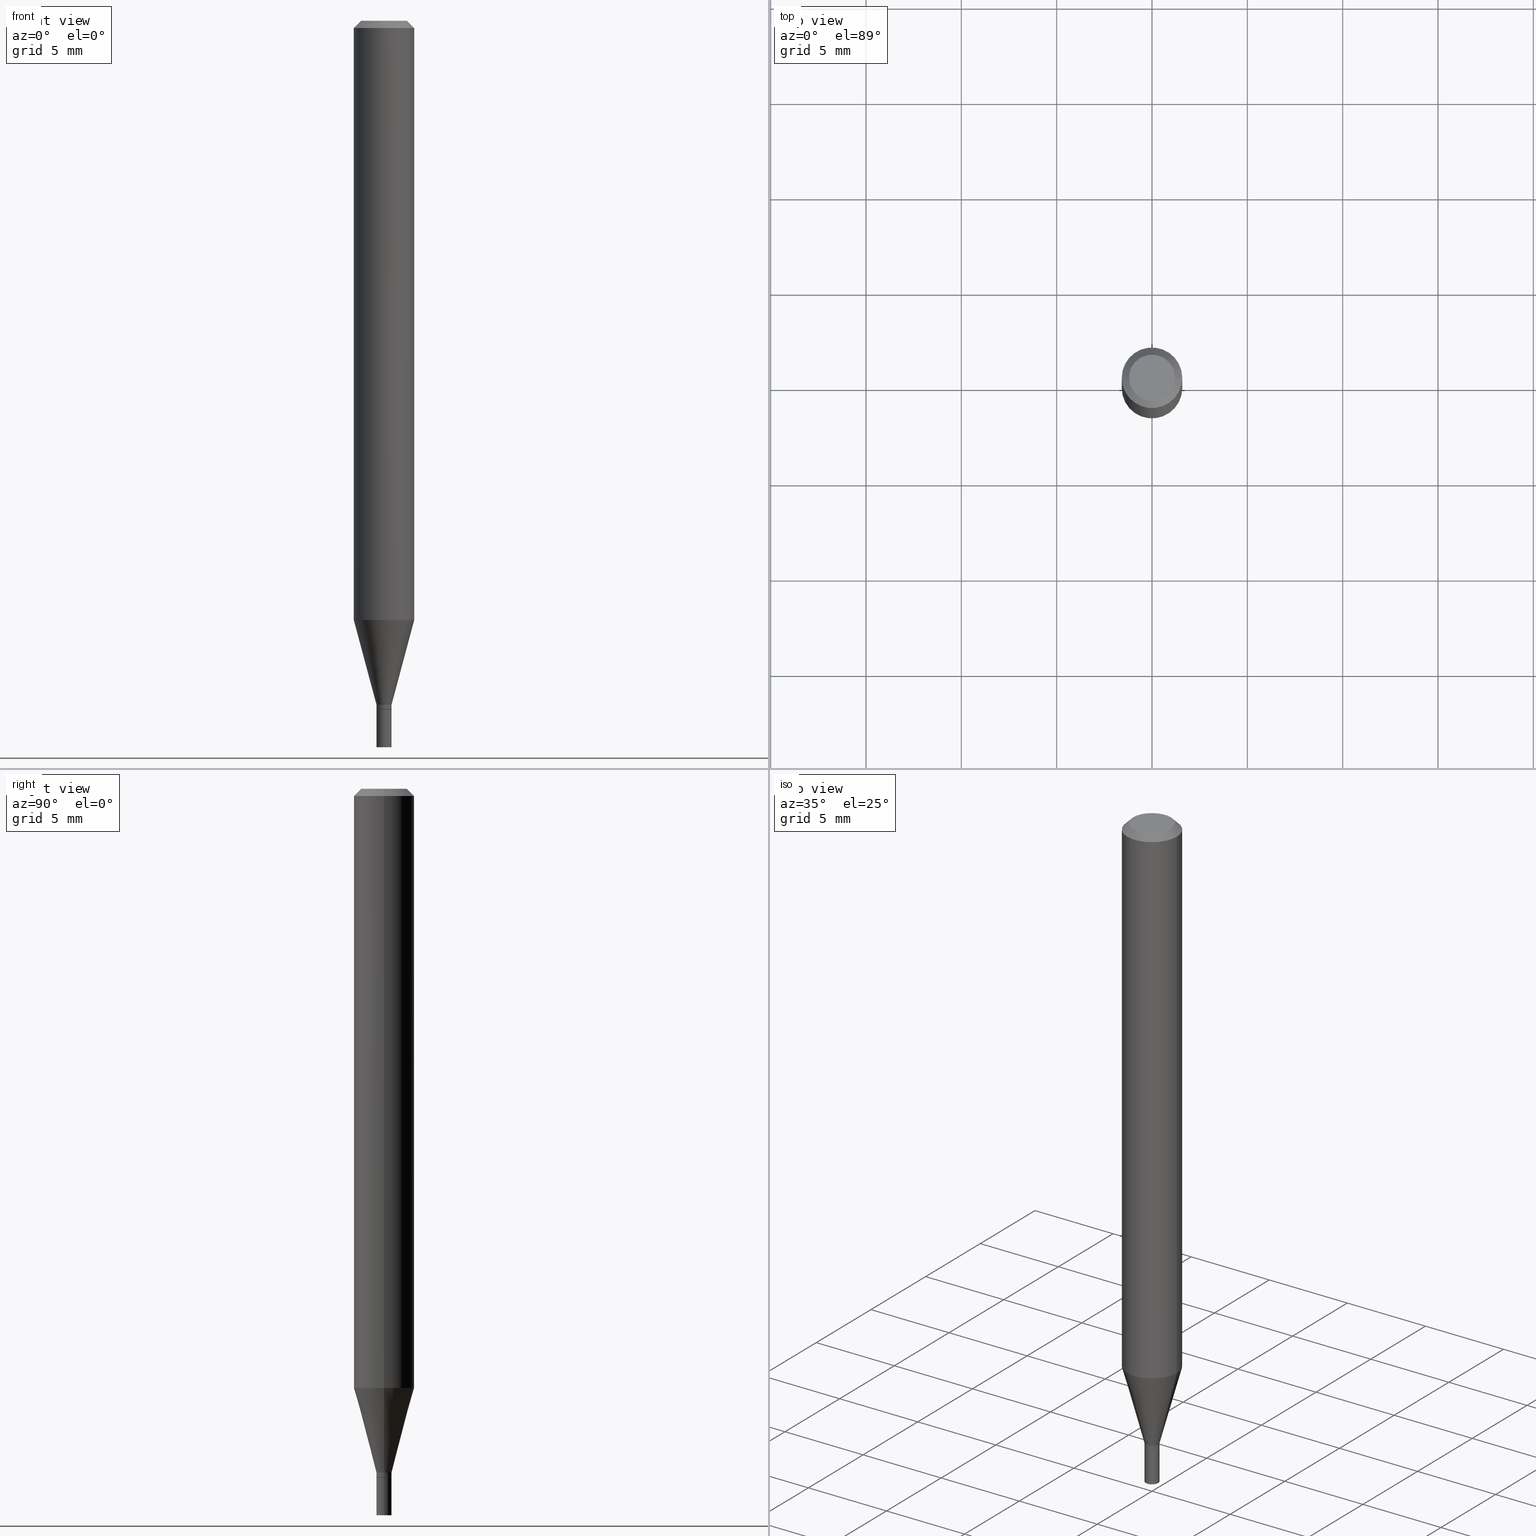
[diagram: canonical four-view strip — front | top / right | iso, engineering-drawing reading convention]
A machine part, canonical four-view strip (front | top / right | iso — engineering-drawing reading convention). The complete STEP part file that produces these views, byte-faithful:
ISO-10303-21;
HEADER;
FILE_DESCRIPTION (( 'STEP AP203' ),
    '1' );
FILE_NAME ('30772.STEP',
    '2024-03-13T16:17:05',
    ( '' ),
    ( '' ),
    'SwSTEP 2.0',
    'SolidWorks 2023',
    '' );
FILE_SCHEMA (( 'CONFIG_CONTROL_DESIGN' ));
ENDSEC;

DATA;
#1 = CARTESIAN_POINT ( 'NONE',  ( -0.01509999999999999884, -4.857594510735178220E-15, -1.421999999999999931 ) ) ;
#2 = EDGE_CURVE ( 'NONE', #197, #410, #57, .T. ) ;
#3 = LOCAL_TIME ( 12, 17, 5.000000000000000000, #382 ) ;
#4 = CARTESIAN_POINT ( 'NONE',  ( 3.453001954333413314E-29, -4.929971650446521716E-15, -1.412000000000000144 ) ) ;
#5 = ORIENTED_EDGE ( 'NONE', *, *, #172, .F. ) ;
#6 = DIRECTION ( 'NONE',  ( -2.445468806185136597E-29, 3.491481338843145583E-15, 1.000000000000000000 ) ) ;
#7 = DIRECTION ( 'NONE',  ( 1.000000000000000000, -6.982962677686252511E-15, 0.000000000000000000 ) ) ;
#8 = ADVANCED_FACE ( 'NONE', ( #419 ), #129, .T. ) ;
#9 = APPLICATION_CONTEXT ( 'configuration controlled 3d designs of mechanical parts and assemblies' ) ;
#10 = ORIENTED_EDGE ( 'NONE', *, *, #422, .T. ) ;
#11 = CARTESIAN_POINT ( 'NONE',  ( -0.01559999999999992816, -4.346942166289046833E-15, -1.412000000000000144 ) ) ;
#12 = AXIS2_PLACEMENT_3D ( 'NONE', #341, #61, #372 ) ;
#13 = EDGE_LOOP ( 'NONE', ( #21, #149, #5, #464 ) ) ;
#14 = DIRECTION ( 'NONE',  ( 1.000000000000000000, -6.982962677686283277E-15, 0.000000000000000000 ) ) ;
#15 = VERTEX_POINT ( 'NONE', #379 ) ;
#16 = VERTEX_POINT ( 'NONE', #240 ) ;
#17 = EDGE_CURVE ( 'NONE', #168, #15, #167, .T. ) ;
#18 = ORIENTED_EDGE ( 'NONE', *, *, #204, .T. ) ;
#19 = AXIS2_PLACEMENT_3D ( 'NONE', #230, #200, #269 ) ;
#20 = DIRECTION ( 'NONE',  ( 1.000000000000000000, -6.982962677686262766E-15, 0.000000000000000000 ) ) ;
#21 = ORIENTED_EDGE ( 'NONE', *, *, #282, .T. ) ;
#22 = DIRECTION ( 'NONE',  ( -2.445468806185136597E-29, 3.491481338843145583E-15, 1.000000000000000000 ) ) ;
#23 = EDGE_LOOP ( 'NONE', ( #127, #184, #333, #446 ) ) ;
#24 = CYLINDRICAL_SURFACE ( 'NONE', #214, 0.01559999999999992643 ) ;
#25 = CARTESIAN_POINT ( 'NONE',  ( -6.958212115706747638E-45, 9.934482783937485755E-31, 2.845348956448708805E-16 ) ) ;
#26 = AXIS2_PLACEMENT_3D ( 'NONE', #244, #354, #466 ) ;
#27 = ORIENTED_EDGE ( 'NONE', *, *, #399, .T. ) ;
#28 = AXIS2_PLACEMENT_3D ( 'NONE', #452, #201, #160 ) ;
#29 = SECURITY_CLASSIFICATION_LEVEL ( 'unclassified' ) ;
#30 = DIRECTION ( 'NONE',  ( -2.445468806185136597E-29, 3.491481338843145583E-15, 1.000000000000000000 ) ) ;
#31 = APPROVAL_ROLE ( '' ) ;
#32 = CARTESIAN_POINT ( 'NONE',  ( 3.668203209277704895E-29, -5.237222008264718177E-15, -1.500000000000000222 ) ) ;
#33 = CARTESIAN_POINT ( 'NONE',  ( 3.024963765565350895E-29, -4.318846558760209820E-15, -1.236966817125020102 ) ) ;
#34 = APPROVAL_PERSON_ORGANIZATION ( #205, #263, #173 ) ;
#35 = COORDINATED_UNIVERSAL_TIME_OFFSET ( 5, 0, .BEHIND. ) ;
#36 = CARTESIAN_POINT ( 'NONE',  ( -0.06250000000000000000, -3.874757348910146415E-15, -1.236966817125020102 ) ) ;
#37 = EDGE_CURVE ( 'NONE', #134, #327, #176, .T. ) ;
#38 = DATE_AND_TIME ( #141, #116 ) ;
#39 = DIRECTION ( 'NONE',  ( 1.000000000000000000, -6.982962677686283277E-15, 0.000000000000000000 ) ) ;
#40 = EDGE_CURVE ( 'NONE', #224, #453, #370, .T. ) ;
#41 = EDGE_CURVE ( 'NONE', #154, #415, #235, .T. ) ;
#42 = CARTESIAN_POINT ( 'NONE',  ( 3.477456642395264859E-29, -4.964886463834953365E-15, -1.421999999999999931 ) ) ;
#43 = CONICAL_SURFACE ( 'NONE', #357, 0.06250000000000001388, 0.7853981633974395082 ) ;
#44 = CARTESIAN_POINT ( 'NONE',  ( 0.000000000000000000, 0.000000000000000000, 0.000000000000000000 ) ) ;
#45 = FACE_OUTER_BOUND ( 'NONE', #238, .T. ) ;
#46 = ORIENTED_EDGE ( 'NONE', *, *, #170, .T. ) ;
#47 = ADVANCED_FACE ( 'NONE', ( #250 ), #395, .F. ) ;
#48 = DIRECTION ( 'NONE',  ( -2.445468806185136597E-29, 3.491481338843145583E-15, 1.000000000000000000 ) ) ;
#49 = AXIS2_PLACEMENT_3D ( 'NONE', #25, #30, #179 ) ;
#50 = CARTESIAN_POINT ( 'NONE',  ( 0.000000000000000000, 0.000000000000000000, 0.000000000000000000 ) ) ;
#51 = ORIENTED_EDGE ( 'NONE', *, *, #170, .F. ) ;
#52 = CARTESIAN_POINT ( 'NONE',  ( 0.06250000000000000000, -4.755281726115601490E-15, -1.236966817125020102 ) ) ;
#53 = ORIENTED_EDGE ( 'NONE', *, *, #309, .F. ) ;
#54 = CARTESIAN_POINT ( 'NONE',  ( 0.000000000000000000, 0.000000000000000000, 0.000000000000000000 ) ) ;
#55 = DIMENSIONAL_EXPONENTS ( 1.000000000000000000, 0.000000000000000000, 0.000000000000000000, 0.000000000000000000, 0.000000000000000000, 0.000000000000000000, 0.000000000000000000 ) ;
#56 = DIRECTION ( 'NONE',  ( 1.000000000000000000, -6.982962677686267499E-15, 4.852736867747366768E-29 ) ) ;
#57 = CIRCLE ( 'NONE', #363, 0.06250000000000000000 ) ;
#58 = DIRECTION ( 'NONE',  ( -2.445468806185136597E-29, 3.491481338843145583E-15, 1.000000000000000000 ) ) ;
#59 = ORIENTED_EDGE ( 'NONE', *, *, #257, .T. ) ;
#60 = DIRECTION ( 'NONE',  ( -2.445468806185136877E-29, 3.491481338843145188E-15, 1.000000000000000000 ) ) ;
#61 = DIRECTION ( 'NONE',  ( -2.445468806185136597E-29, 3.491481338843145583E-15, 1.000000000000000000 ) ) ;
#62 = CC_DESIGN_PERSON_AND_ORGANIZATION_ASSIGNMENT ( #135, #178, ( #318 ) ) ;
#63 = APPROVAL_DATE_TIME ( #389, #384 ) ;
#64 = FACE_OUTER_BOUND ( 'NONE', #13, .T. ) ;
#65 = CIRCLE ( 'NONE', #213, 0.06250000000000000000 ) ;
#66 = LOCAL_TIME ( 12, 17, 5.000000000000000000, #35 ) ;
#67 = APPROVAL_DATE_TIME ( #241, #396 ) ;
#68 = LINE ( 'NONE', #104, #349 ) ;
#69 = PERSON_AND_ORGANIZATION ( #339, #274 ) ;
#70 = ORIENTED_EDGE ( 'NONE', *, *, #331, .T. ) ;
#71 = CARTESIAN_POINT ( 'NONE',  ( -0.06250000000000001388, 3.840629472727445902E-16, -0.01499999999999999944 ) ) ;
#72 = PERSON_AND_ORGANIZATION_ROLE ( 'classification_officer' ) ;
#73 = FACE_OUTER_BOUND ( 'NONE', #221, .T. ) ;
#74 = VECTOR ( 'NONE', #428, 39.37007874015748143 ) ;
#75 = AXIS2_PLACEMENT_3D ( 'NONE', #54, #303, #447 ) ;
#76 = CALENDAR_DATE ( 2024, 13, 3 ) ;
#77 = DIRECTION ( 'NONE',  ( -0.2588190451025215166, 5.211531920934551042E-15, 0.9659258262890679791 ) ) ;
#78 = CARTESIAN_POINT ( 'NONE',  ( -0.01559999999999999928, 1.108446667785756239E-16, -7.673538740797652489E-31 ) ) ;
#79 = CARTESIAN_POINT ( 'NONE',  ( 0.000000000000000000, 0.000000000000000000, 0.000000000000000000 ) ) ;
#80 = ORIENTED_EDGE ( 'NONE', *, *, #231, .F. ) ;
#81 = CONICAL_SURFACE ( 'NONE', #386, 0.06250000000000001388, 0.7853981633974395082 ) ;
#82 = LOCAL_TIME ( 12, 17, 5.000000000000000000, #215 ) ;
#83 = DIRECTION ( 'NONE',  ( 1.000000000000000000, -6.982962677686250144E-15, 0.000000000000000000 ) ) ;
#84 = ADVANCED_FACE ( 'NONE', ( #73 ), #174, .T. ) ;
#85 = PLANE ( 'NONE',  #302 ) ;
#86 = ORIENTED_EDGE ( 'NONE', *, *, #383, .T. ) ;
#87 = DIRECTION ( 'NONE',  ( -2.445468806185136597E-29, 3.491481338843145583E-15, 1.000000000000000000 ) ) ;
#88 = VECTOR ( 'NONE', #359, 39.37007874015748143 ) ;
#89 = CIRCLE ( 'NONE', #350, 0.04749999999999999362 ) ;
#90 =( NAMED_UNIT ( * ) SI_UNIT ( $, .STERADIAN. ) SOLID_ANGLE_UNIT ( ) );
#91 = ORIENTED_EDGE ( 'NONE', *, *, #93, .F. ) ;
#92 = CARTESIAN_POINT ( 'NONE',  ( -6.958212115706747638E-45, 9.934482783937485755E-31, 2.845348956448708805E-16 ) ) ;
#93 = EDGE_CURVE ( 'NONE', #168, #415, #212, .T. ) ;
#94 = AXIS2_PLACEMENT_3D ( 'NONE', #421, #137, #390 ) ;
#95 = CIRCLE ( 'NONE', #236, 0.06250000000000001388 ) ;
#96 = DIRECTION ( 'NONE',  ( 0.7071067811865412445, -7.319954787623233957E-15, -0.7071067811865536790 ) ) ;
#97 = DIRECTION ( 'NONE',  ( 1.000000000000000000, -6.982962677686266711E-15, 4.876176775795935793E-29 ) ) ;
#98 = ORIENTED_EDGE ( 'NONE', *, *, #172, .T. ) ;
#99 = COORDINATED_UNIVERSAL_TIME_OFFSET ( 5, 0, .BEHIND. ) ;
#100 = VERTEX_POINT ( 'NONE', #136 ) ;
#101 = CARTESIAN_POINT ( 'NONE',  ( 3.316907271900976096E-16, 0.04749999999999999362, -2.357791577261395620E-17 ) ) ;
#102 = AXIS2_PLACEMENT_3D ( 'NONE', #460, #314, #175 ) ;
#103 = DIRECTION ( 'NONE',  ( -2.445468806185136597E-29, 3.491481338843145583E-15, 1.000000000000000000 ) ) ;
#104 = CARTESIAN_POINT ( 'NONE',  ( -0.01559999999999992816, -4.819126983667946462E-15, -1.412000000000000144 ) ) ;
#105 = ADVANCED_FACE ( 'NONE', ( #208 ), #43, .T. ) ;
#106 = PERSON_AND_ORGANIZATION ( #339, #274 ) ;
#107 = DIRECTION ( 'NONE',  ( -1.000000000000000000, 6.982962677686265922E-15, -4.876176775795935793E-29 ) ) ;
#108 = MANIFOLD_SOLID_BREP ( 'Body-Move/Copy2[2]', #423 ) ;
#109 = AXIS2_PLACEMENT_3D ( 'NONE', #306, #450, #348 ) ;
#110 = CIRCLE ( 'NONE', #376, 0.01559999999999992816 ) ;
#111 = LINE ( 'NONE', #284, #74 ) ;
#112 = CYLINDRICAL_SURFACE ( 'NONE', #152, 0.06250000000000001388 ) ;
#113 = ORIENTED_EDGE ( 'NONE', *, *, #17, .F. ) ;
#114 = FACE_OUTER_BOUND ( 'NONE', #330, .T. ) ;
#115 = CC_DESIGN_PERSON_AND_ORGANIZATION_ASSIGNMENT ( #162, #305, ( #403 ) ) ;
#116 = LOCAL_TIME ( 12, 17, 5.000000000000000000, #138 ) ;
#117 = DIRECTION ( 'NONE',  ( -2.445468806185136597E-29, 3.491481338843145583E-15, 1.000000000000000000 ) ) ;
#118 = DIRECTION ( 'NONE',  ( 1.000000000000000000, -6.982962677686265922E-15, 4.876176775795935793E-29 ) ) ;
#119 = EDGE_CURVE ( 'NONE', #100, #16, #294, .T. ) ;
#120 = CARTESIAN_POINT ( 'NONE',  ( 3.453001954333413314E-29, -4.929971650446521716E-15, -1.412000000000000144 ) ) ;
#121 = ADVANCED_FACE ( 'NONE', ( #355 ), #286, .F. ) ;
#122 = CIRCLE ( 'NONE', #183, 0.01509999999999999884 ) ;
#123 = CC_DESIGN_SECURITY_CLASSIFICATION ( #227, ( #318 ) ) ;
#124 = APPLICATION_PROTOCOL_DEFINITION ( 'international standard', 'config_control_design', 1994, #126 ) ;
#125 = ORIENTED_EDGE ( 'NONE', *, *, #204, .F. ) ;
#126 = APPLICATION_CONTEXT ( 'configuration controlled 3d designs of mechanical parts and assemblies' ) ;
#127 = ORIENTED_EDGE ( 'NONE', *, *, #211, .T. ) ;
#128 = CARTESIAN_POINT ( 'NONE',  ( 0.06250000000000001388, -4.811533449433680977E-16, -0.01499999999999999944 ) ) ;
#129 = CYLINDRICAL_SURFACE ( 'NONE', #273, 0.01559999999999999928 ) ;
#130 = ADVANCED_FACE ( 'NONE', ( #283 ), #158, .T. ) ;
#131 = FACE_OUTER_BOUND ( 'NONE', #156, .T. ) ;
#132 = APPROVAL_PERSON_ORGANIZATION ( #414, #384, #31 ) ;
#133 = EDGE_CURVE ( 'NONE', #373, #197, #68, .T. ) ;
#134 = VERTEX_POINT ( 'NONE', #248 ) ;
#135 = PERSON_AND_ORGANIZATION ( #339, #274 ) ;
#136 = CARTESIAN_POINT ( 'NONE',  ( 0.01559999999999999928, -5.346156226036624733E-15, -1.500000000000000222 ) ) ;
#137 = DIRECTION ( 'NONE',  ( -2.445468806185136597E-29, 3.491481338843145583E-15, 1.000000000000000000 ) ) ;
#138 = COORDINATED_UNIVERSAL_TIME_OFFSET ( 5, 0, .BEHIND. ) ;
#139 = CARTESIAN_POINT ( 'NONE',  ( -0.01509999999999999884, -4.854945283561067019E-15, -1.421999999999999931 ) ) ;
#140 = EDGE_CURVE ( 'NONE', #16, #100, #431, .T. ) ;
#141 = CALENDAR_DATE ( 2024, 13, 3 ) ;
#142 = CARTESIAN_POINT ( 'NONE',  ( 3.576687321579069994E-29, -5.368277968210015545E-15, -1.500000000000000222 ) ) ;
#143 = CC_DESIGN_PERSON_AND_ORGANIZATION_ASSIGNMENT ( #463, #425, ( #254 ) ) ;
#144 = DIRECTION ( 'NONE',  ( 2.445468806185136597E-29, -3.491481338843145583E-15, -1.000000000000000000 ) ) ;
#145 = CONICAL_SURFACE ( 'NONE', #280, 0.01559999999999992816, 0.2617993877991502405 ) ;
#146 = CARTESIAN_POINT ( 'NONE',  ( 3.453001954333413314E-29, -4.929971650446521716E-15, -1.412000000000000144 ) ) ;
#147 = EDGE_LOOP ( 'NONE', ( #346, #113 ) ) ;
#148 = FACE_OUTER_BOUND ( 'NONE', #381, .T. ) ;
#149 = ORIENTED_EDGE ( 'NONE', *, *, #133, .T. ) ;
#150 = DIRECTION ( 'NONE',  ( -2.445468806185136877E-29, 3.491481338843145188E-15, 1.000000000000000000 ) ) ;
#151 = PRODUCT_RELATED_PRODUCT_CATEGORY ( 'detail', '', ( #403 ) ) ;
#152 = AXIS2_PLACEMENT_3D ( 'NONE', #44, #87, #223 ) ;
#153 = DIRECTION ( 'NONE',  ( 1.000000000000000000, -6.982962677686255667E-15, 0.000000000000000000 ) ) ;
#154 = VERTEX_POINT ( 'NONE', #181 ) ;
#155 = CARTESIAN_POINT ( 'NONE',  ( -0.01559999999999999928, -4.990209569271260911E-15, -1.421999999999999931 ) ) ;
#156 = EDGE_LOOP ( 'NONE', ( #277, #267, #344, #198 ) ) ;
#157 = EDGE_LOOP ( 'NONE', ( #91, #276, #409, #125 ) ) ;
#158 = CONICAL_SURFACE ( 'NONE', #454, 0.01509999999999999884, 0.7853981633974718157 ) ;
#159 = CIRCLE ( 'NONE', #12, 0.01559999999999999928 ) ;
#160 = DIRECTION ( 'NONE',  ( -1.000000000000000000, 6.982962677686265922E-15, -4.876176775795935793E-29 ) ) ;
#161 = EDGE_LOOP ( 'NONE', ( #459, #202, #46, #258 ) ) ;
#162 = PERSON_AND_ORGANIZATION ( #339, #274 ) ;
#163 = ADVANCED_FACE ( 'NONE', ( #64 ), #145, .T. ) ;
#164 = CARTESIAN_POINT ( 'NONE',  ( 0.000000000000000000, 0.000000000000000000, 0.000000000000000000 ) ) ;
#165 = FACE_OUTER_BOUND ( 'NONE', #23, .T. ) ;
#166 = CARTESIAN_POINT ( 'NONE',  ( 0.01559999999999992643, -1.089342177719052370E-16, 7.606835770241623291E-31 ) ) ;
#167 = CIRCLE ( 'NONE', #109, 0.01509999999999999884 ) ;
#168 = VERTEX_POINT ( 'NONE', #139 ) ;
#169 = CALENDAR_DATE ( 2024, 13, 3 ) ;
#170 = EDGE_CURVE ( 'NONE', #134, #224, #246, .T. ) ;
#171 = DIRECTION ( 'NONE',  ( -2.445468806185136597E-29, 3.491481338843145583E-15, 1.000000000000000000 ) ) ;
#172 = EDGE_CURVE ( 'NONE', #410, #197, #65, .T. ) ;
#173 = APPROVAL_ROLE ( '' ) ;
#174 = CYLINDRICAL_SURFACE ( 'NONE', #102, 0.01559999999999992643 ) ;
#175 = DIRECTION ( 'NONE',  ( 1.000000000000000000, -6.982962677686265922E-15, 4.876176775795935232E-29 ) ) ;
#176 = CIRCLE ( 'NONE', #49, 0.04749999999999999362 ) ;
#177 = VECTOR ( 'NONE', #96, 39.37007874015748854 ) ;
#178 = PERSON_AND_ORGANIZATION_ROLE ( 'creator' ) ;
#179 = DIRECTION ( 'NONE',  ( 1.000000000000000000, -6.982962677686267499E-15, 4.852736867747366768E-29 ) ) ;
#180 = APPROVAL_DATE_TIME ( #38, #263 ) ;
#181 = CARTESIAN_POINT ( 'NONE',  ( 0.01559999999999992122, -5.072074940937436839E-15, -1.421500000000000208 ) ) ;
#182 = LINE ( 'NONE', #435, #222 ) ;
#183 = AXIS2_PLACEMENT_3D ( 'NONE', #42, #193, #83 ) ;
#184 = ORIENTED_EDGE ( 'NONE', *, *, #93, .T. ) ;
#185 = PRODUCT_DEFINITION_SHAPE ( 'NONE', 'NONE',  #254 ) ;
#186 = DIRECTION ( 'NONE',  ( 1.000000000000000000, -6.982962677686267499E-15, 0.000000000000000000 ) ) ;
#187 = EDGE_LOOP ( 'NONE', ( #342, #189 ) ) ;
#188 = DIRECTION ( 'NONE',  ( -2.445468806185136597E-29, 3.491481338843145583E-15, 1.000000000000000000 ) ) ;
#189 = ORIENTED_EDGE ( 'NONE', *, *, #434, .T. ) ;
#190 = DIRECTION ( 'NONE',  ( 1.000000000000000000, -6.982962677686266711E-15, 4.876176775795935793E-29 ) ) ;
#191 = VERTEX_POINT ( 'NONE', #465 ) ;
#192 = AXIS2_PLACEMENT_3D ( 'NONE', #392, #171, #323 ) ;
#193 = DIRECTION ( 'NONE',  ( -2.445468806185136597E-29, 3.491481338843145583E-15, 1.000000000000000000 ) ) ;
#194 = ORIENTED_EDGE ( 'NONE', *, *, #457, .T. ) ;
#195 = CARTESIAN_POINT ( 'NONE',  ( 0.01559999999999999928, -1.089342177719057547E-16, 7.606835770241659199E-31 ) ) ;
#196 = EDGE_CURVE ( 'NONE', #415, #373, #111, .T. ) ;
#197 = VERTEX_POINT ( 'NONE', #36 ) ;
#198 = ORIENTED_EDGE ( 'NONE', *, *, #399, .F. ) ;
#199 = VECTOR ( 'NONE', #364, 39.37007874015748143 ) ;
#200 = DIRECTION ( 'NONE',  ( -2.445468806185136597E-29, 3.491481338843145583E-15, 1.000000000000000000 ) ) ;
#201 = DIRECTION ( 'NONE',  ( 2.438088387897960049E-29, -3.491481338843145188E-15, -1.000000000000000000 ) ) ;
#202 = ORIENTED_EDGE ( 'NONE', *, *, #37, .F. ) ;
#203 = DIRECTION ( 'NONE',  ( -2.445468806185136597E-29, 3.491481338843145583E-15, 1.000000000000000000 ) ) ;
#204 = EDGE_CURVE ( 'NONE', #415, #154, #408, .T. ) ;
#205 = PERSON_AND_ORGANIZATION ( #339, #274 ) ;
#206 = DIRECTION ( 'NONE',  ( 1.000000000000000000, -6.982962677686262766E-15, 0.000000000000000000 ) ) ;
#207 = PERSON_AND_ORGANIZATION_ROLE ( 'design_supplier' ) ;
#208 = FACE_OUTER_BOUND ( 'NONE', #161, .T. ) ;
#209 = DATE_TIME_ROLE ( 'classification_date' ) ;
#210 = DIRECTION ( 'NONE',  ( 1.000000000000000000, -6.982962677686265922E-15, 4.876176775795935793E-29 ) ) ;
#211 = EDGE_CURVE ( 'NONE', #15, #168, #122, .T. ) ;
#212 = LINE ( 'NONE', #1, #88 ) ;
#213 = AXIS2_PLACEMENT_3D ( 'NONE', #33, #319, #206 ) ;
#214 = AXIS2_PLACEMENT_3D ( 'NONE', #407, #203, #375 ) ;
#215 = COORDINATED_UNIVERSAL_TIME_OFFSET ( 5, 0, .BEHIND. ) ;
#216 = DIRECTION ( 'NONE',  ( -2.445468806185136597E-29, 3.491481338843145583E-15, 1.000000000000000000 ) ) ;
#217 = CARTESIAN_POINT ( 'NONE',  ( 0.01559999999999992816, -5.038905868218426694E-15, -1.412000000000000144 ) ) ;
#218 = ADVANCED_FACE ( 'NONE', ( #148 ), #81, .T. ) ;
#219 = DIRECTION ( 'NONE',  ( -2.445468806185136877E-29, 3.491481338843145188E-15, 1.000000000000000000 ) ) ;
#220 = VECTOR ( 'NONE', #219, 39.37007874015748143 ) ;
#221 = EDGE_LOOP ( 'NONE', ( #245, #18, #27, #307 ) ) ;
#222 = VECTOR ( 'NONE', #325, 39.37007874015748143 ) ;
#223 = DIRECTION ( 'NONE',  ( 1.000000000000000000, -6.982962677686265922E-15, 4.876176775795935232E-29 ) ) ;
#224 = VERTEX_POINT ( 'NONE', #297 ) ;
#225 = DIRECTION ( 'NONE',  ( -2.445468806185136597E-29, 3.491481338843145583E-15, 1.000000000000000000 ) ) ;
#226 = LINE ( 'NONE', #78, #335 ) ;
#227 = SECURITY_CLASSIFICATION ( '', '', #29 ) ;
#228 = PLANE ( 'NONE',  #28 ) ;
#229 = ORIENTED_EDGE ( 'NONE', *, *, #40, .F. ) ;
#230 = CARTESIAN_POINT ( 'NONE',  ( 3.477456642395264859E-29, -4.964886463834953365E-15, -1.421999999999999931 ) ) ;
#231 = EDGE_CURVE ( 'NONE', #410, #453, #405, .T. ) ;
#232 = LINE ( 'NONE', #166, #260 ) ;
#233 = CARTESIAN_POINT ( 'NONE',  ( 3.024963765565350895E-29, -4.318846558760209820E-15, -1.236966817125020102 ) ) ;
#234 = EDGE_LOOP ( 'NONE', ( #374, #312, #301, #406 ) ) ;
#235 = CIRCLE ( 'NONE', #26, 0.01559999999999992122 ) ;
#236 = AXIS2_PLACEMENT_3D ( 'NONE', #398, #328, #186 ) ;
#237 = APPROVAL_STATUS ( 'not_yet_approved' ) ;
#238 = EDGE_LOOP ( 'NONE', ( #329, #86, #70, #295 ) ) ;
#239 = CARTESIAN_POINT ( 'NONE',  ( 0.06250000000000001388, -4.888073874380389458E-16, -0.01499999999999999944 ) ) ;
#240 = CARTESIAN_POINT ( 'NONE',  ( -0.01559999999999999928, -4.990209569271260911E-15, -1.500000000000000222 ) ) ;
#241 = DATE_AND_TIME ( #313, #66 ) ;
#242 = ORIENTED_EDGE ( 'NONE', *, *, #2, .T. ) ;
#243 = CC_DESIGN_PERSON_AND_ORGANIZATION_ASSIGNMENT ( #106, #207, ( #318 ) ) ;
#244 = CARTESIAN_POINT ( 'NONE',  ( 3.476233907992172058E-29, -4.963140723165531861E-15, -1.421500000000000208 ) ) ;
#245 = ORIENTED_EDGE ( 'NONE', *, *, #196, .F. ) ;
#246 = LINE ( 'NONE', #71, #249 ) ;
#247 = APPROVAL_STATUS ( 'not_yet_approved' ) ;
#248 = CARTESIAN_POINT ( 'NONE',  ( -0.04749999999999999362, 3.578768372314216422E-16, 2.845348956448684646E-16 ) ) ;
#249 = VECTOR ( 'NONE', #433, 39.37007874015748854 ) ;
#250 = FACE_OUTER_BOUND ( 'NONE', #404, .T. ) ;
#251 = VECTOR ( 'NONE', #411, 39.37007874015748143 ) ;
#252 = VECTOR ( 'NONE', #401, 39.37007874015748143 ) ;
#253 = ADVANCED_FACE ( 'NONE', ( #264 ), #112, .T. ) ;
#254 = PRODUCT_DEFINITION ( 'UNKNOWN', '', #318, #262 ) ;
#255 = CARTESIAN_POINT ( 'NONE',  ( 3.476233907992172058E-29, -4.963140723165531861E-15, -1.421500000000000208 ) ) ;
#256 = DIRECTION ( 'NONE',  ( 1.000000000000000000, -6.982962677686252511E-15, 0.000000000000000000 ) ) ;
#257 = EDGE_CURVE ( 'NONE', #453, #224, #95, .T. ) ;
#258 = ORIENTED_EDGE ( 'NONE', *, *, #40, .T. ) ;
#259 = CARTESIAN_POINT ( 'NONE',  ( 0.01559999999999992816, -5.038905868218426694E-15, -1.412000000000000144 ) ) ;
#260 = VECTOR ( 'NONE', #60, 39.37007874015748143 ) ;
#261 = FACE_OUTER_BOUND ( 'NONE', #147, .T. ) ;
#262 = DESIGN_CONTEXT ( 'detailed design', #9, 'design' ) ;
#263 = APPROVAL ( #247, 'UNSPECIFIED' ) ;
#264 = FACE_OUTER_BOUND ( 'NONE', #438, .T. ) ;
#265 = EDGE_LOOP ( 'NONE', ( #400, #10 ) ) ;
#266 =( NAMED_UNIT ( * ) PLANE_ANGLE_UNIT ( ) SI_UNIT ( $, .RADIAN. ) );
#267 = ORIENTED_EDGE ( 'NONE', *, *, #196, .T. ) ;
#268 = MANIFOLD_SOLID_BREP ( 'Body-Move/Copy2[1]', #287 ) ;
#269 = DIRECTION ( 'NONE',  ( 1.000000000000000000, -6.982962677686250144E-15, 0.000000000000000000 ) ) ;
#270 = ORIENTED_EDGE ( 'NONE', *, *, #422, .F. ) ;
#271 = DIRECTION ( 'NONE',  ( -2.445468806185136597E-29, 3.491481338843145583E-15, 1.000000000000000000 ) ) ;
#272 = ORIENTED_EDGE ( 'NONE', *, *, #140, .F. ) ;
#273 = AXIS2_PLACEMENT_3D ( 'NONE', #164, #271, #97 ) ;
#274 = ORGANIZATION ( 'UNSPECIFIED', 'UNSPECIFIED', '' ) ;
#275 =( CONVERSION_BASED_UNIT ( 'INCH', #347 ) LENGTH_UNIT ( ) NAMED_UNIT ( #55 ) );
#276 = ORIENTED_EDGE ( 'NONE', *, *, #17, .T. ) ;
#277 = ORIENTED_EDGE ( 'NONE', *, *, #41, .T. ) ;
#278 = ORIENTED_EDGE ( 'NONE', *, *, #119, .F. ) ;
#279 = DIRECTION ( 'NONE',  ( -1.000000000000000000, 6.982962677686267499E-15, 0.000000000000000000 ) ) ;
#280 = AXIS2_PLACEMENT_3D ( 'NONE', #288, #316, #426 ) ;
#281 =( GEOMETRIC_REPRESENTATION_CONTEXT ( 3 ) GLOBAL_UNCERTAINTY_ASSIGNED_CONTEXT ( ( #440 ) ) GLOBAL_UNIT_ASSIGNED_CONTEXT ( ( #275, #266, #90 ) ) REPRESENTATION_CONTEXT ( 'NONE', 'WORKASPACE' ) );
#282 = EDGE_CURVE ( 'NONE', #371, #373, #110, .T. ) ;
#283 = FACE_OUTER_BOUND ( 'NONE', #157, .T. ) ;
#284 = CARTESIAN_POINT ( 'NONE',  ( -0.01559999999999992643, 1.108446667785751062E-16, -7.673538740797616580E-31 ) ) ;
#285 = CALENDAR_DATE ( 2024, 13, 3 ) ;
#286 = PLANE ( 'NONE',  #393 ) ;
#287 = CLOSED_SHELL ( 'NONE', ( #8, #47, #322, #413 ) ) ;
#288 = CARTESIAN_POINT ( 'NONE',  ( 3.453001954333413314E-29, -4.929971650446521716E-15, -1.412000000000000144 ) ) ;
#289 = CARTESIAN_POINT ( 'NONE',  ( 3.477456642395264859E-29, -4.964886463834953365E-15, -1.421999999999999931 ) ) ;
#290 = CC_DESIGN_DATE_AND_TIME_ASSIGNMENT ( #317, #427, ( #254 ) ) ;
#291 = ORIENTED_EDGE ( 'NONE', *, *, #140, .T. ) ;
#292 = FACE_OUTER_BOUND ( 'NONE', #340, .T. ) ;
#293 = CARTESIAN_POINT ( 'NONE',  ( 0.04749999999999999362, -4.035134999187574186E-16, 2.845348956448734443E-16 ) ) ;
#294 = CIRCLE ( 'NONE', #94, 0.01559999999999999928 ) ;
#295 = ORIENTED_EDGE ( 'NONE', *, *, #2, .F. ) ;
#296 = CC_DESIGN_APPROVAL ( #263, ( #227 ) ) ;
#297 = CARTESIAN_POINT ( 'NONE',  ( -0.06250000000000002776, -1.741520179571366031E-15, -0.01499999999999999944 ) ) ;
#298 = DIRECTION ( 'NONE',  ( -1.000000000000000000, 6.982962677686267499E-15, 0.000000000000000000 ) ) ;
#299 = ADVANCED_FACE ( 'NONE', ( #292 ), #332, .T. ) ;
#300 = FACE_OUTER_BOUND ( 'NONE', #187, .T. ) ;
#301 = ORIENTED_EDGE ( 'NONE', *, *, #337, .F. ) ;
#302 = AXIS2_PLACEMENT_3D ( 'NONE', #289, #362, #118 ) ;
#303 = DIRECTION ( 'NONE',  ( 0.000000000000000000, 0.000000000000000000, 1.000000000000000000 ) ) ;
#304 = VERTEX_POINT ( 'NONE', #155 ) ;
#305 = PERSON_AND_ORGANIZATION_ROLE ( 'design_owner' ) ;
#306 = CARTESIAN_POINT ( 'NONE',  ( 3.477456642395264859E-29, -4.964886463834953365E-15, -1.421999999999999931 ) ) ;
#307 = ORIENTED_EDGE ( 'NONE', *, *, #383, .F. ) ;
#308 = ORIENTED_EDGE ( 'NONE', *, *, #418, .T. ) ;
#309 = EDGE_CURVE ( 'NONE', #16, #304, #226, .T. ) ;
#310 = CONICAL_SURFACE ( 'NONE', #19, 0.01509999999999999884, 0.7853981633974718157 ) ;
#311 = CARTESIAN_POINT ( 'NONE',  ( -0.01559999999999992122, -4.852296056386956607E-15, -1.421500000000000208 ) ) ;
#312 = ORIENTED_EDGE ( 'NONE', *, *, #309, .T. ) ;
#313 = CALENDAR_DATE ( 2024, 13, 3 ) ;
#314 = DIRECTION ( 'NONE',  ( -2.445468806185136597E-29, 3.491481338843145583E-15, 1.000000000000000000 ) ) ;
#315 = EDGE_CURVE ( 'NONE', #197, #224, #182, .T. ) ;
#316 = DIRECTION ( 'NONE',  ( -2.445468806185136597E-29, 3.491481338843145583E-15, 1.000000000000000000 ) ) ;
#317 = DATE_AND_TIME ( #169, #441 ) ;
#318 = PRODUCT_DEFINITION_FORMATION_WITH_SPECIFIED_SOURCE ( 'ANY', '', #403, .NOT_KNOWN. ) ;
#319 = DIRECTION ( 'NONE',  ( -2.445468806185136597E-29, 3.491481338843145583E-15, 1.000000000000000000 ) ) ;
#320 = PERSON_AND_ORGANIZATION ( #339, #274 ) ;
#321 = DIRECTION ( 'NONE',  ( -2.438088387897960049E-29, 3.491481338843145188E-15, 1.000000000000000000 ) ) ;
#322 = ADVANCED_FACE ( 'NONE', ( #114 ), #442, .T. ) ;
#323 = DIRECTION ( 'NONE',  ( 1.000000000000000000, -6.982962677686267499E-15, 0.000000000000000000 ) ) ;
#324 = AXIS2_PLACEMENT_3D ( 'NONE', #255, #352, #153 ) ;
#325 = DIRECTION ( 'NONE',  ( -2.445468806185136877E-29, 3.491481338843145188E-15, 1.000000000000000000 ) ) ;
#326 = APPROVAL_PERSON_ORGANIZATION ( #320, #396, #391 ) ;
#327 = VERTEX_POINT ( 'NONE', #293 ) ;
#328 = DIRECTION ( 'NONE',  ( -2.445468806185136597E-29, 3.491481338843145583E-15, 1.000000000000000000 ) ) ;
#329 = ORIENTED_EDGE ( 'NONE', *, *, #133, .F. ) ;
#330 = EDGE_LOOP ( 'NONE', ( #53, #291, #308, #448 ) ) ;
#331 = EDGE_CURVE ( 'NONE', #371, #410, #336, .T. ) ;
#332 = CYLINDRICAL_SURFACE ( 'NONE', #424, 0.06250000000000001388 ) ;
#333 = ORIENTED_EDGE ( 'NONE', *, *, #41, .F. ) ;
#334 = CARTESIAN_POINT ( 'NONE',  ( 3.668203209277705088E-31, -5.237222008264718399E-17, -0.01499999999999999944 ) ) ;
#335 = VECTOR ( 'NONE', #150, 39.37007874015748143 ) ;
#336 = LINE ( 'NONE', #259, #199 ) ;
#337 = EDGE_CURVE ( 'NONE', #191, #304, #417, .T. ) ;
#338 = ORIENTED_EDGE ( 'NONE', *, *, #257, .F. ) ;
#339 = PERSON ( 'UNSPECIFIED', 'UNSPECIFIED', 'UNSPECIFIED', ('UNSPECIFIED'), ('UNSPECIFIED'), ('UNSPECIFIED') ) ;
#340 = EDGE_LOOP ( 'NONE', ( #98, #343, #338, #80 ) ) ;
#341 = CARTESIAN_POINT ( 'NONE',  ( 3.477456642395264859E-29, -4.964886463834953365E-15, -1.421999999999999931 ) ) ;
#342 = ORIENTED_EDGE ( 'NONE', *, *, #337, .T. ) ;
#343 = ORIENTED_EDGE ( 'NONE', *, *, #315, .T. ) ;
#344 = ORIENTED_EDGE ( 'NONE', *, *, #282, .F. ) ;
#345 = LINE ( 'NONE', #195, #251 ) ;
#346 = ORIENTED_EDGE ( 'NONE', *, *, #211, .F. ) ;
#347 = LENGTH_MEASURE_WITH_UNIT ( LENGTH_MEASURE( 0.02539999999999999897 ), #444 );
#348 = DIRECTION ( 'NONE',  ( 1.000000000000000000, -6.982962677686250144E-15, 0.000000000000000000 ) ) ;
#349 = VECTOR ( 'NONE', #77, 39.37007874015748143 ) ;
#350 = AXIS2_PLACEMENT_3D ( 'NONE', #92, #22, #56 ) ;
#351 = SHAPE_DEFINITION_REPRESENTATION ( #185, #429 ) ;
#352 = DIRECTION ( 'NONE',  ( -2.445468806185136597E-29, 3.491481338843145583E-15, 1.000000000000000000 ) ) ;
#353 = DATE_AND_TIME ( #285, #82 ) ;
#354 = DIRECTION ( 'NONE',  ( -2.445468806185136597E-29, 3.491481338843145583E-15, 1.000000000000000000 ) ) ;
#355 = FACE_OUTER_BOUND ( 'NONE', #265, .T. ) ;
#356 = APPROVAL_STATUS ( 'not_yet_approved' ) ;
#357 = AXIS2_PLACEMENT_3D ( 'NONE', #461, #144, #279 ) ;
#358 = CIRCLE ( 'NONE', #445, 0.01559999999999992816 ) ;
#359 = DIRECTION ( 'NONE',  ( -0.7071067811865642261, 7.493145998870414114E-15, 0.7071067811865309194 ) ) ;
#360 = EDGE_CURVE ( 'NONE', #15, #154, #397, .T. ) ;
#361 = CARTESIAN_POINT ( 'NONE',  ( 3.477456642395264859E-29, -4.964886463834953365E-15, -1.421999999999999931 ) ) ;
#362 = DIRECTION ( 'NONE',  ( -2.438088387897960049E-29, 3.491481338843145188E-15, 1.000000000000000000 ) ) ;
#363 = AXIS2_PLACEMENT_3D ( 'NONE', #233, #58, #20 ) ;
#364 = DIRECTION ( 'NONE',  ( 0.2588190451025215166, 1.565188264969620784E-15, 0.9659258262890679791 ) ) ;
#365 = AXIS2_PLACEMENT_3D ( 'NONE', #146, #188, #439 ) ;
#366 = CARTESIAN_POINT ( 'NONE',  ( 0.01509999999999999884, -5.070329200268016125E-15, -1.421999999999999931 ) ) ;
#367 = DIRECTION ( 'NONE',  ( -2.445468806185136597E-29, 3.491481338843145583E-15, 1.000000000000000000 ) ) ;
#368 = CARTESIAN_POINT ( 'NONE',  ( 0.06250000000000001388, -4.364351673553917187E-16, 3.047610484872460221E-30 ) ) ;
#369 = ADVANCED_FACE ( 'NONE', ( #45 ), #462, .T. ) ;
#370 = CIRCLE ( 'NONE', #192, 0.06250000000000001388 ) ;
#371 = VERTEX_POINT ( 'NONE', #217 ) ;
#372 = DIRECTION ( 'NONE',  ( 1.000000000000000000, -6.982962677686283277E-15, 0.000000000000000000 ) ) ;
#373 = VERTEX_POINT ( 'NONE', #11 ) ;
#374 = ORIENTED_EDGE ( 'NONE', *, *, #119, .T. ) ;
#375 = DIRECTION ( 'NONE',  ( 1.000000000000000000, -6.982962677686265922E-15, 4.876176775795935232E-29 ) ) ;
#376 = AXIS2_PLACEMENT_3D ( 'NONE', #120, #6, #7 ) ;
#377 = ADVANCED_FACE ( 'NONE', ( #261 ), #85, .F. ) ;
#378 = MECHANICAL_CONTEXT ( 'NONE', #126, 'mechanical' ) ;
#379 = CARTESIAN_POINT ( 'NONE',  ( 0.01509999999999999884, -5.070329200268016125E-15, -1.421999999999999931 ) ) ;
#380 = LINE ( 'NONE', #128, #177 ) ;
#381 = EDGE_LOOP ( 'NONE', ( #270, #194, #59, #51 ) ) ;
#382 = COORDINATED_UNIVERSAL_TIME_OFFSET ( 5, 0, .BEHIND. ) ;
#383 = EDGE_CURVE ( 'NONE', #373, #371, #358, .T. ) ;
#384 = APPROVAL ( #237, 'UNSPECIFIED' ) ;
#385 = AXIS2_PLACEMENT_3D ( 'NONE', #142, #321, #210 ) ;
#386 = AXIS2_PLACEMENT_3D ( 'NONE', #334, #402, #298 ) ;
#387 = DIRECTION ( 'NONE',  ( 1.000000000000000000, -6.982962677686250144E-15, 0.000000000000000000 ) ) ;
#388 = CC_DESIGN_PERSON_AND_ORGANIZATION_ASSIGNMENT ( #69, #72, ( #227 ) ) ;
#389 = DATE_AND_TIME ( #76, #3 ) ;
#390 = DIRECTION ( 'NONE',  ( 1.000000000000000000, -6.982962677686283277E-15, 0.000000000000000000 ) ) ;
#391 = APPROVAL_ROLE ( '' ) ;
#392 = CARTESIAN_POINT ( 'NONE',  ( 3.668203209277705088E-31, -5.237222008264718399E-17, -0.01499999999999999944 ) ) ;
#393 = AXIS2_PLACEMENT_3D ( 'NONE', #101, #430, #107 ) ;
#394 = CC_DESIGN_APPROVAL ( #384, ( #254 ) ) ;
#395 = PLANE ( 'NONE',  #385 ) ;
#396 = APPROVAL ( #356, 'UNSPECIFIED' ) ;
#397 = LINE ( 'NONE', #366, #252 ) ;
#398 = CARTESIAN_POINT ( 'NONE',  ( 3.668203209277705088E-31, -5.237222008264718399E-17, -0.01499999999999999944 ) ) ;
#399 = EDGE_CURVE ( 'NONE', #154, #371, #232, .T. ) ;
#400 = ORIENTED_EDGE ( 'NONE', *, *, #37, .T. ) ;
#401 = DIRECTION ( 'NONE',  ( 0.7071067811865642261, -2.468850131082431399E-15, 0.7071067811865309194 ) ) ;
#402 = DIRECTION ( 'NONE',  ( 2.445468806185136597E-29, -3.491481338843145583E-15, -1.000000000000000000 ) ) ;
#403 = PRODUCT ( '30772', '30772', '', ( #378 ) ) ;
#404 = EDGE_LOOP ( 'NONE', ( #278, #272 ) ) ;
#405 = LINE ( 'NONE', #368, #220 ) ;
#406 = ORIENTED_EDGE ( 'NONE', *, *, #418, .F. ) ;
#407 = CARTESIAN_POINT ( 'NONE',  ( 0.000000000000000000, 0.000000000000000000, 0.000000000000000000 ) ) ;
#408 = CIRCLE ( 'NONE', #324, 0.01559999999999992122 ) ;
#409 = ORIENTED_EDGE ( 'NONE', *, *, #360, .T. ) ;
#410 = VERTEX_POINT ( 'NONE', #52 ) ;
#411 = DIRECTION ( 'NONE',  ( -2.445468806185136877E-29, 3.491481338843145188E-15, 1.000000000000000000 ) ) ;
#412 = ORIENTED_EDGE ( 'NONE', *, *, #231, .T. ) ;
#413 = ADVANCED_FACE ( 'NONE', ( #300 ), #228, .F. ) ;
#414 = PERSON_AND_ORGANIZATION ( #339, #274 ) ;
#415 = VERTEX_POINT ( 'NONE', #311 ) ;
#416 = AXIS2_PLACEMENT_3D ( 'NONE', #32, #216, #39 ) ;
#417 = CIRCLE ( 'NONE', #456, 0.01559999999999999928 ) ;
#418 = EDGE_CURVE ( 'NONE', #100, #191, #345, .T. ) ;
#419 = FACE_OUTER_BOUND ( 'NONE', #234, .T. ) ;
#420 = ADVANCED_FACE ( 'NONE', ( #131 ), #24, .T. ) ;
#421 = CARTESIAN_POINT ( 'NONE',  ( 3.668203209277704895E-29, -5.237222008264718177E-15, -1.500000000000000222 ) ) ;
#422 = EDGE_CURVE ( 'NONE', #327, #134, #89, .T. ) ;
#423 = CLOSED_SHELL ( 'NONE', ( #420, #458, #218, #299, #163, #369, #253, #105, #121, #377, #130, #84 ) ) ;
#424 = AXIS2_PLACEMENT_3D ( 'NONE', #79, #225, #437 ) ;
#425 = PERSON_AND_ORGANIZATION_ROLE ( 'creator' ) ;
#426 = DIRECTION ( 'NONE',  ( 1.000000000000000000, -6.982962677686252511E-15, 0.000000000000000000 ) ) ;
#427 = DATE_TIME_ROLE ( 'creation_date' ) ;
#428 = DIRECTION ( 'NONE',  ( -2.445468806185136877E-29, 3.491481338843145188E-15, 1.000000000000000000 ) ) ;
#429 = ADVANCED_BREP_SHAPE_REPRESENTATION ( '30772', ( #268, #108, #75 ), #281 ) ;
#430 = DIRECTION ( 'NONE',  ( 2.438088387897960049E-29, -3.491481338843145188E-15, -1.000000000000000000 ) ) ;
#431 = CIRCLE ( 'NONE', #416, 0.01559999999999999928 ) ;
#432 = CC_DESIGN_APPROVAL ( #396, ( #318 ) ) ;
#433 = DIRECTION ( 'NONE',  ( -0.7071067811865412445, 2.468850131082191585E-15, -0.7071067811865536790 ) ) ;
#434 = EDGE_CURVE ( 'NONE', #304, #191, #159, .T. ) ;
#435 = CARTESIAN_POINT ( 'NONE',  ( -0.06250000000000001388, 4.440892098500627148E-16, -3.074334431409316814E-30 ) ) ;
#436 = ORIENTED_EDGE ( 'NONE', *, *, #315, .F. ) ;
#437 = DIRECTION ( 'NONE',  ( 1.000000000000000000, -6.982962677686265922E-15, 4.876176775795935232E-29 ) ) ;
#438 = EDGE_LOOP ( 'NONE', ( #436, #242, #412, #229 ) ) ;
#439 = DIRECTION ( 'NONE',  ( 1.000000000000000000, -6.982962677686252511E-15, 0.000000000000000000 ) ) ;
#440 = UNCERTAINTY_MEASURE_WITH_UNIT (LENGTH_MEASURE( 1.000000000000000082E-05 ), #275, 'distance_accuracy_value', 'NONE');
#441 = LOCAL_TIME ( 12, 17, 5.000000000000000000, #99 ) ;
#442 = CYLINDRICAL_SURFACE ( 'NONE', #455, 0.01559999999999999928 ) ;
#443 = CARTESIAN_POINT ( 'NONE',  ( 3.477456642395264859E-29, -4.964886463834953365E-15, -1.421999999999999931 ) ) ;
#444 =( LENGTH_UNIT ( ) NAMED_UNIT ( * ) SI_UNIT ( $, .METRE. ) );
#445 = AXIS2_PLACEMENT_3D ( 'NONE', #4, #48, #256 ) ;
#446 = ORIENTED_EDGE ( 'NONE', *, *, #360, .F. ) ;
#447 = DIRECTION ( 'NONE',  ( 1.000000000000000000, 0.000000000000000000, 0.000000000000000000 ) ) ;
#448 = ORIENTED_EDGE ( 'NONE', *, *, #434, .F. ) ;
#449 = APPLICATION_PROTOCOL_DEFINITION ( 'international standard', 'config_control_design', 1994, #9 ) ;
#450 = DIRECTION ( 'NONE',  ( -2.445468806185136597E-29, 3.491481338843145583E-15, 1.000000000000000000 ) ) ;
#451 = CC_DESIGN_DATE_AND_TIME_ASSIGNMENT ( #353, #209, ( #227 ) ) ;
#452 = CARTESIAN_POINT ( 'NONE',  ( 1.089342177719405139E-16, 0.01559999999999503451, -1.421999999999999931 ) ) ;
#453 = VERTEX_POINT ( 'NONE', #239 ) ;
#454 = AXIS2_PLACEMENT_3D ( 'NONE', #361, #103, #387 ) ;
#455 = AXIS2_PLACEMENT_3D ( 'NONE', #50, #117, #190 ) ;
#456 = AXIS2_PLACEMENT_3D ( 'NONE', #443, #367, #14 ) ;
#457 = EDGE_CURVE ( 'NONE', #327, #453, #380, .T. ) ;
#458 = ADVANCED_FACE ( 'NONE', ( #165 ), #310, .T. ) ;
#459 = ORIENTED_EDGE ( 'NONE', *, *, #457, .F. ) ;
#460 = CARTESIAN_POINT ( 'NONE',  ( 0.000000000000000000, 0.000000000000000000, 0.000000000000000000 ) ) ;
#461 = CARTESIAN_POINT ( 'NONE',  ( 3.668203209277705088E-31, -5.237222008264718399E-17, -0.01499999999999999944 ) ) ;
#462 = CONICAL_SURFACE ( 'NONE', #365, 0.01559999999999992816, 0.2617993877991502405 ) ;
#463 = PERSON_AND_ORGANIZATION ( #339, #274 ) ;
#464 = ORIENTED_EDGE ( 'NONE', *, *, #331, .F. ) ;
#465 = CARTESIAN_POINT ( 'NONE',  ( 0.01559999999999999928, -5.073820681606859921E-15, -1.421999999999999931 ) ) ;
#466 = DIRECTION ( 'NONE',  ( 1.000000000000000000, -6.982962677686255667E-15, 0.000000000000000000 ) ) ;
ENDSEC;
END-ISO-10303-21;
